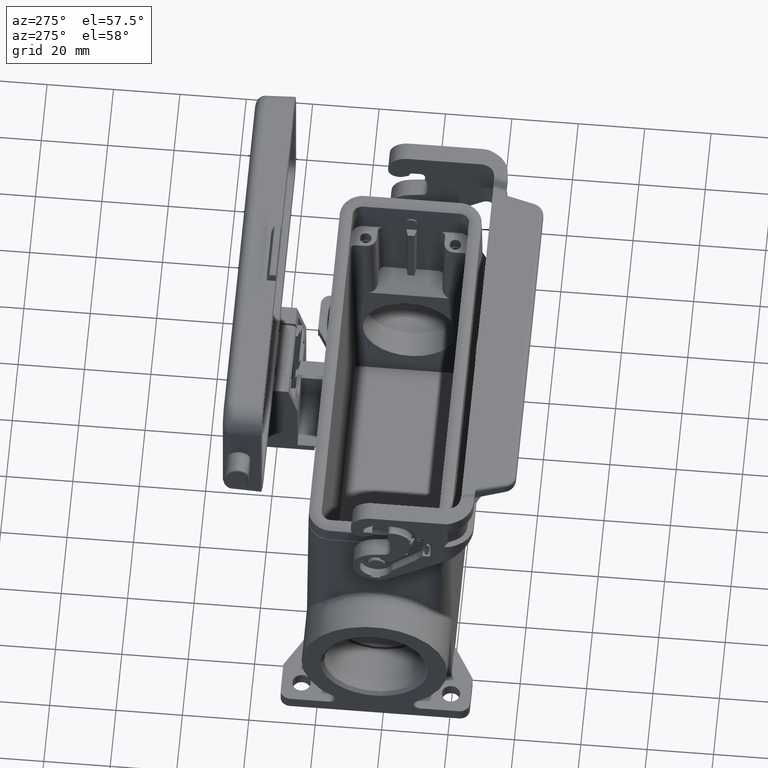
[diagram: clean part render]
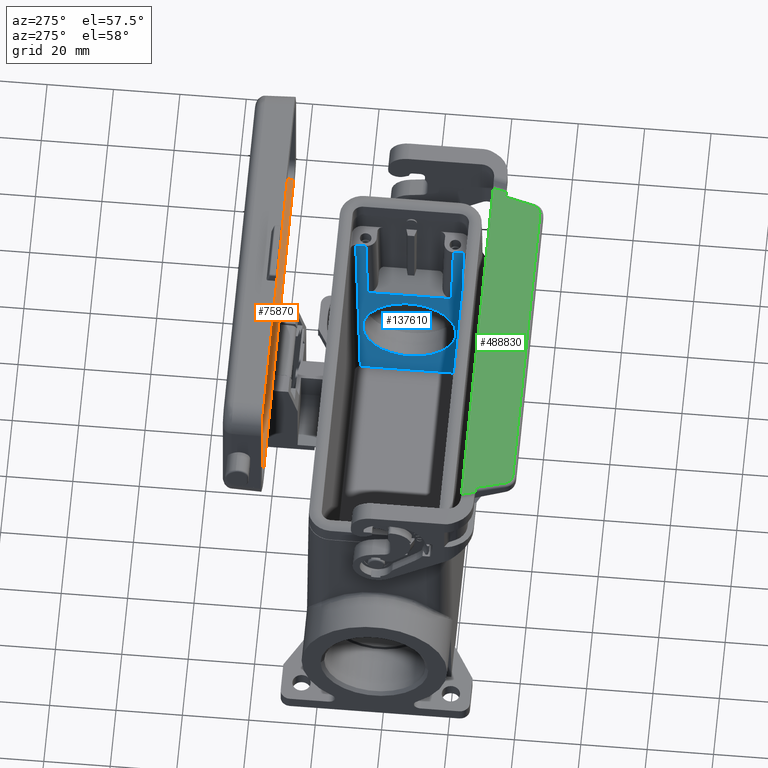
[diagram: same view with three faces highlighted in distinct colors, each labeled with its STEP entity id]
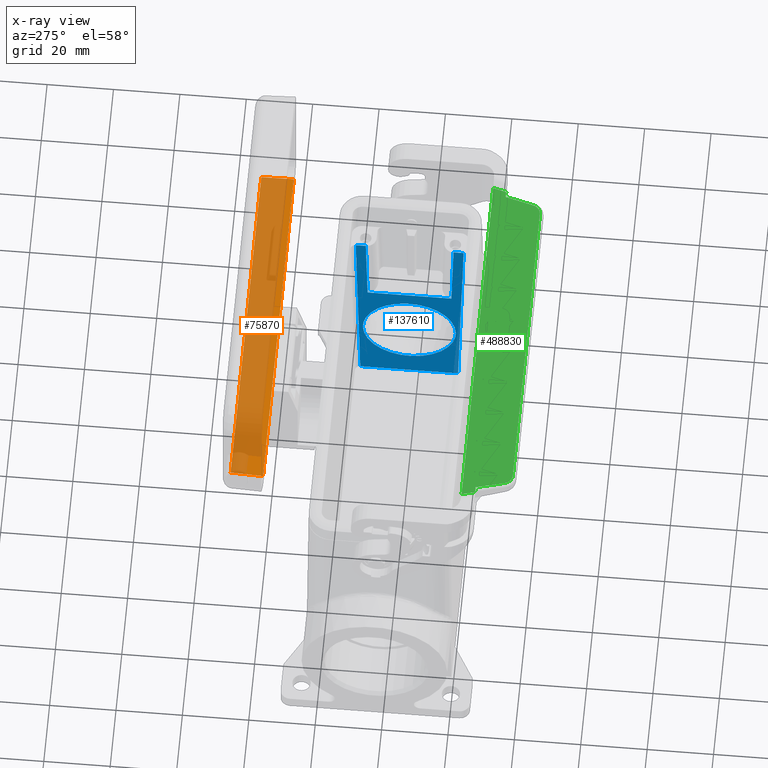
[diagram: x-ray of the same camera — body ghosted, the three highlighted faces saturated]
A machine part, auxiliary view with three faces highlighted in distinct colors.
The next image is the same camera in x-ray (body ghosted, the three faces saturated) — at least one of them is partly hidden behind the body in this view.
Their STEP definitions:

[orange] entity #75870 — the highlighted planar face has unit normal (-0, 0.0262, -0.9997).
#75480=CARTESIAN_POINT('',(-2.80960038104269,5.20680988052908,96.3));
#75490=DIRECTION('',(7.56224528982145E-36,-0.0261769483078731,
-0.999657324975557));
#75500=DIRECTION('',(-1.,-2.88889491658085E-34,-2.13912737531884E-50));
#75510=AXIS2_PLACEMENT_3D('',#75480,#75490,#75500);
#75520=PLANE('',#75510);
#75530=CARTESIAN_POINT('',(7.32645434741895,5.09686669763602,
96.3028789635643));
#75540=DIRECTION('',(0.0261679842649793,-0.99931500198837,
0.0261679842649792));
#75550=VECTOR('',#75540,1.);
#75560=LINE('',#75530,#75550);
#75570=CARTESIAN_POINT('',(7.33006956763096,4.95880700771979,
96.3064941837763));
#75580=VERTEX_POINT('',#75570);
#75590=CARTESIAN_POINT('',(7.58543459954652,-4.79319011947092,
96.5618592156919));
#75600=VERTEX_POINT('',#75590);
#75610=EDGE_CURVE('',#75580,#75600,#75560,.T.);
#75620=ORIENTED_EDGE('',*,*,#75610,.T.);
#75630=CARTESIAN_POINT('',(-2.80960038104269,4.95880700771979,
96.3064941837763));
#75640=DIRECTION('',(-1.,-2.88889491658085E-34,-2.40548823908298E-50));
#75650=VECTOR('',#75640,1.);
#75660=LINE('',#75630,#75650);
#75670=CARTESIAN_POINT('',(113.319959670284,4.95880700771979,
96.3064941837763));
#75680=VERTEX_POINT('',#75670);
#75690=EDGE_CURVE('',#75680,#75580,#75660,.T.);
#75700=ORIENTED_EDGE('',*,*,#75690,.T.);
#75710=CARTESIAN_POINT('',(113.323574890496,5.09686669763602,
96.3028789635643));
#75720=DIRECTION('',(-0.0261679842649793,-0.99931500198837,
0.0261679842649792));
#75730=VECTOR('',#75720,1.);
#75740=LINE('',#75710,#75730);
#75750=CARTESIAN_POINT('',(113.064594638368,-4.79319011947092,
96.5618592156919));
#75760=VERTEX_POINT('',#75750);
#75770=EDGE_CURVE('',#75680,#75760,#75740,.T.);
#75780=ORIENTED_EDGE('',*,*,#75770,.F.);
#75790=CARTESIAN_POINT('',(-6.30960038104269,-4.79319011947092,
96.5618592156919));
#75800=DIRECTION('',(-1.,-2.88889491658085E-34,-2.40548823908298E-50));
#75810=VECTOR('',#75800,1.);
#75820=LINE('',#75790,#75810);
#75830=EDGE_CURVE('',#75760,#75600,#75820,.T.);
#75840=ORIENTED_EDGE('',*,*,#75830,.F.);
#75850=EDGE_LOOP('',(#75840,#75780,#75700,#75620));
#75860=FACE_OUTER_BOUND('',#75850,.T.);
#75870=ADVANCED_FACE('',(#75860),#75520,.F.);

[blue] entity #137610 — the highlighted planar face has unit normal (-0.9997, -0, 0.0233).
#54770=CARTESIAN_POINT('',(12.5814694147516,25.4675652767239,
2.99999999999996));
#54780=VERTEX_POINT('',#54770);
#54810=CARTESIAN_POINT('',(12.5814694147516,0.,2.99999999999997));
#54820=DIRECTION('',(-2.85039635158937E-18,1.,1.22464679914735E-16));
#54830=VECTOR('',#54820,1.);
#54840=LINE('',#54810,#54830);
#54850=CARTESIAN_POINT('',(12.5814694147516,54.9425947232762,
2.99999999999997));
#54860=VERTEX_POINT('',#54850);
#54870=EDGE_CURVE('',#54780,#54860,#54840,.T.);
#84420=CARTESIAN_POINT('',(11.0685779999999,27.0058922760555,68.));
#84430=VERTEX_POINT('',#84420);
#84460=CARTESIAN_POINT('',(11.068578,0.,68.));
#84470=DIRECTION('',(0.,-1.,0.));
#84480=VECTOR('',#84470,1.);
#84490=LINE('',#84460,#84480);
#84500=CARTESIAN_POINT('',(11.0685779999999,23.9546738619723,68.));
#84510=VERTEX_POINT('',#84500);
#84520=EDGE_CURVE('',#84430,#84510,#84490,.T.);
#89720=CARTESIAN_POINT('',(11.650459313366,52.8223864105785,43.));
#89730=VERTEX_POINT('',#89720);
#89760=CARTESIAN_POINT('',(11.650459313366,1.4210854715202E-14,43.));
#89770=DIRECTION('',(0.,1.,0.));
#89780=VECTOR('',#89770,1.);
#89790=LINE('',#89760,#89780);
#89800=CARTESIAN_POINT('',(11.650459313366,27.5877735894215,43.));
#89810=VERTEX_POINT('',#89800);
#89820=EDGE_CURVE('',#89810,#89730,#89790,.T.);
#90500=CARTESIAN_POINT('',(12.6496704002542,28.5869846763097,
0.0698068516735813));
#90510=DIRECTION('',(0.0232626536972686,0.0232626536972686,
-0.999458702441438));
#90520=VECTOR('',#90510,1.);
#90530=LINE('',#90500,#90520);
#90540=EDGE_CURVE('',#84430,#89810,#90530,.T.);
#109620=CARTESIAN_POINT('',(12.0810514852568,54.20508,24.5));
#109630=VERTEX_POINT('',#109620);
#109810=CARTESIAN_POINT('',(12.0810514852568,26.20508,24.5));
#109820=VERTEX_POINT('',#109810);
#109850=CARTESIAN_POINT('',(12.0810514852568,40.20508,24.5));
#109860=DIRECTION('',(0.999729241314835,0.,0.0232689505578674));
#109870=DIRECTION('',(0.0232689505578674,0.,-0.999729241314835));
#109880=AXIS2_PLACEMENT_3D('',#109850,#109860,#109870);
#109890=ELLIPSE('',#109880,14.003791648214,14.);
#109900=EDGE_CURVE('',#109630,#109820,#109890,.T.);
#110280=CARTESIAN_POINT('',(11.068578,56.4554861380278,68.));
#110290=VERTEX_POINT('',#110280);
#110340=CARTESIAN_POINT('',(11.8242122005722,55.6998519374555,
35.5348656497852));
#110350=DIRECTION('',(-0.0232626536972686,0.0232626536972685,
0.999458702441438));
#110360=VECTOR('',#110350,1.);
#110370=LINE('',#110340,#110360);
#110380=EDGE_CURVE('',#54860,#110290,#110370,.T.);
#137240=CARTESIAN_POINT('',(12.6508666379349,57.95508,0.0184115905912113
));
#137250=DIRECTION('',(0.999729241314835,0.,0.0232689505578674));
#137260=DIRECTION('',(0.,-1.,0.));
#137270=AXIS2_PLACEMENT_3D('',#137240,#137250,#137260);
#137280=PLANE('',#137270);
#137290=ORIENTED_EDGE('',*,*,#84520,.T.);
#137300=ORIENTED_EDGE('',*,*,#90540,.F.);
#137310=ORIENTED_EDGE('',*,*,#89820,.F.);
#137320=CARTESIAN_POINT('',(12.6496704002542,51.8231753236903,
0.0698068516735813));
#137330=DIRECTION('',(0.0232626536972686,-0.0232626536972686,
-0.999458702441438));
#137340=VECTOR('',#137330,1.);
#137350=LINE('',#137320,#137340);
#137360=CARTESIAN_POINT('',(11.0685779999999,53.4042677239445,68.));
#137370=VERTEX_POINT('',#137360);
#137380=EDGE_CURVE('',#137370,#89730,#137350,.T.);
#137390=ORIENTED_EDGE('',*,*,#137380,.T.);
#137400=CARTESIAN_POINT('',(11.068578,0.,68.));
#137410=DIRECTION('',(0.,-1.,0.));
#137420=VECTOR('',#137410,1.);
#137430=LINE('',#137400,#137420);
#137440=EDGE_CURVE('',#110290,#137370,#137430,.T.);
#137450=ORIENTED_EDGE('',*,*,#137440,.T.);
#137460=ORIENTED_EDGE('',*,*,#110380,.T.);
#137470=ORIENTED_EDGE('',*,*,#54870,.T.);
#137480=CARTESIAN_POINT('',(11.8242122005722,24.7103080625445,
35.5348656497852));
#137490=DIRECTION('',(-0.0232626536972686,-0.0232626536972686,
0.999458702441438));
#137500=VECTOR('',#137490,1.);
#137510=LINE('',#137480,#137500);
#137520=EDGE_CURVE('',#54780,#84510,#137510,.T.);
#137530=ORIENTED_EDGE('',*,*,#137520,.F.);
#137540=EDGE_LOOP('',(#137530,#137470,#137460,#137450,#137390,#137310,
#137300,#137290));
#137550=FACE_OUTER_BOUND('',#137540,.T.);
#137560=EDGE_CURVE('',#109820,#109630,#109890,.T.);
#137570=ORIENTED_EDGE('',*,*,#137560,.F.);
#137580=ORIENTED_EDGE('',*,*,#109900,.F.);
#137590=EDGE_LOOP('',(#137580,#137570));
#137600=FACE_BOUND('',#137590,.T.);
#137610=ADVANCED_FACE('',(#137550,#137600),#137280,.T.);

[green] entity #488830 — the highlighted planar face has unit normal (0, 0, 1).
#313760=CARTESIAN_POINT('',(8.45545101844355,68.9130623705901,
97.0000000000487));
#313770=VERTEX_POINT('',#313760);
#313800=CARTESIAN_POINT('',(116.068578,68.91306237059,97.0000000000488))
;
#313810=DIRECTION('',(-1.,2.26797510251041E-30,-5.30477996090278E-16));
#313820=VECTOR('',#313810,1.);
#313830=LINE('',#313800,#313820);
#313840=CARTESIAN_POINT('',(6.71920016991908,68.91306237059,
97.0000000000487));
#313850=VERTEX_POINT('',#313840);
#313860=EDGE_CURVE('',#313770,#313850,#313830,.T.);
#328180=CARTESIAN_POINT('',(10.7401083221264,77.4395195058176,
97.0000000000488));
#328190=VERTEX_POINT('',#328180);
#328220=CARTESIAN_POINT('',(-88.8403637239777,-294.199861611935,
97.0000000000478));
#328230=DIRECTION('',(-0.258819045102521,-0.965925826289068,
-2.34469272719954E-15));
#328240=VECTOR('',#328230,1.);
#328250=LINE('',#328220,#328240);
#328260=EDGE_CURVE('',#328190,#313770,#328250,.T.);
#328480=CARTESIAN_POINT('',(13.6378858009936,79.66306237051,
97.0000000000488));
#328490=VERTEX_POINT('',#328480);
#328540=CARTESIAN_POINT('',(13.6378858009936,76.66306237051,
97.0000000000488));
#328550=DIRECTION('',(-5.30477996090278E-16,-2.31081361403301E-15,1.));
#328560=DIRECTION('',(-1.,1.86243165512251E-16,-5.30477996090278E-16));
#328570=AXIS2_PLACEMENT_3D('',#328540,#328550,#328560);
#328580=CIRCLE('',#328570,3.);
#328590=EDGE_CURVE('',#328490,#328190,#328580,.T.);
#464010=CARTESIAN_POINT('',(106.999270199006,79.66306237051,
97.0000000000488));
#464020=VERTEX_POINT('',#464010);
#464050=CARTESIAN_POINT('',(116.068578,79.6630623705101,97.0000000000488
));
#464060=DIRECTION('',(1.,-2.26797510251041E-30,5.30477996090278E-16));
#464070=VECTOR('',#464060,1.);
#464080=LINE('',#464050,#464070);
#464090=EDGE_CURVE('',#328490,#464020,#464080,.T.);
#464790=CARTESIAN_POINT('',(114.989752599805,64.91306237059,
97.0000000000488));
#464800=VERTEX_POINT('',#464790);
#464830=CARTESIAN_POINT('',(211.213770572502,-294.199861611935,
97.000000000048));
#464840=DIRECTION('',(-0.258819045102521,0.965925826289068,
2.12272398235624E-15));
#464850=VECTOR('',#464840,1.);
#464860=LINE('',#464830,#464850);
#464870=CARTESIAN_POINT('',(113.917955830081,68.91306237059,
97.0000000000488));
#464880=VERTEX_POINT('',#464870);
#464890=EDGE_CURVE('',#464800,#464880,#464860,.T.);
#465140=CARTESIAN_POINT('',(-90.5766145725022,-294.199861611935,
97.0000000000478));
#465150=DIRECTION('',(0.258819045102521,0.965925826289068,
2.37040568316377E-15));
#465160=VECTOR('',#465150,1.);
#465170=LINE('',#465140,#465160);
#465180=CARTESIAN_POINT('',(5.64740340019459,64.91306237059,
97.0000000000487));
#465190=VERTEX_POINT('',#465180);
#465200=EDGE_CURVE('',#465190,#313850,#465170,.T.);
#466180=CARTESIAN_POINT('',(116.068578,64.91306237059,97.0000000000488))
;
#466190=DIRECTION('',(1.,-2.26797510251041E-30,5.30477996090278E-16));
#466200=VECTOR('',#466190,1.);
#466210=LINE('',#466180,#466200);
#466220=EDGE_CURVE('',#465190,#464800,#466210,.T.);
#487580=CARTESIAN_POINT('',(116.068578,68.91306237059,97.0000000000488))
;
#487590=DIRECTION('',(-1.,2.07075987620516E-30,-5.30477996090278E-16));
#487600=VECTOR('',#487590,1.);
#487610=LINE('',#487580,#487600);
#487620=CARTESIAN_POINT('',(112.181704981556,68.9130623705901,
97.0000000000488));
#487630=VERTEX_POINT('',#487620);
#487640=EDGE_CURVE('',#464880,#487630,#487610,.T.);
#487890=CARTESIAN_POINT('',(209.477519723978,-294.199861611935,
97.000000000048));
#487900=DIRECTION('',(0.258819045102521,-0.965925826289068,
-2.10391487448325E-15));
#487910=VECTOR('',#487900,1.);
#487920=LINE('',#487890,#487910);
#487930=CARTESIAN_POINT('',(109.897047677874,77.4395195058177,
97.0000000000488));
#487940=VERTEX_POINT('',#487930);
#487950=EDGE_CURVE('',#487940,#487630,#487920,.T.);
#488220=CARTESIAN_POINT('',(106.999270199006,76.66306237051,
97.0000000000488));
#488230=DIRECTION('',(-5.30477996090277E-16,-2.31081361403301E-15,1.));
#488240=DIRECTION('',(-1.,1.86243165512251E-16,-5.30477996090277E-16));
#488250=AXIS2_PLACEMENT_3D('',#488220,#488230,#488240);
#488260=CIRCLE('',#488250,3.);
#488270=EDGE_CURVE('',#487940,#464020,#488260,.T.);
#488660=CARTESIAN_POINT('',(85.0685782623445,70.91306237059,
97.0000000000488));
#488670=DIRECTION('',(-5.30477996090278E-16,-2.31081361403301E-15,1.));
#488680=DIRECTION('',(-1.,2.16936748935778E-30,-5.30477996090278E-16));
#488690=AXIS2_PLACEMENT_3D('',#488660,#488670,#488680);
#488700=PLANE('',#488690);
#488710=ORIENTED_EDGE('',*,*,#464890,.T.);
#488720=ORIENTED_EDGE('',*,*,#466220,.T.);
#488730=ORIENTED_EDGE('',*,*,#465200,.F.);
#488740=ORIENTED_EDGE('',*,*,#313860,.T.);
#488750=ORIENTED_EDGE('',*,*,#328260,.T.);
#488760=ORIENTED_EDGE('',*,*,#328590,.T.);
#488770=ORIENTED_EDGE('',*,*,#464090,.F.);
#488780=ORIENTED_EDGE('',*,*,#488270,.T.);
#488790=ORIENTED_EDGE('',*,*,#487950,.F.);
#488800=ORIENTED_EDGE('',*,*,#487640,.T.);
#488810=EDGE_LOOP('',(#488800,#488790,#488780,#488770,#488760,#488750,
#488740,#488730,#488720,#488710));
#488820=FACE_OUTER_BOUND('',#488810,.T.);
#488830=ADVANCED_FACE('',(#488820),#488700,.T.);